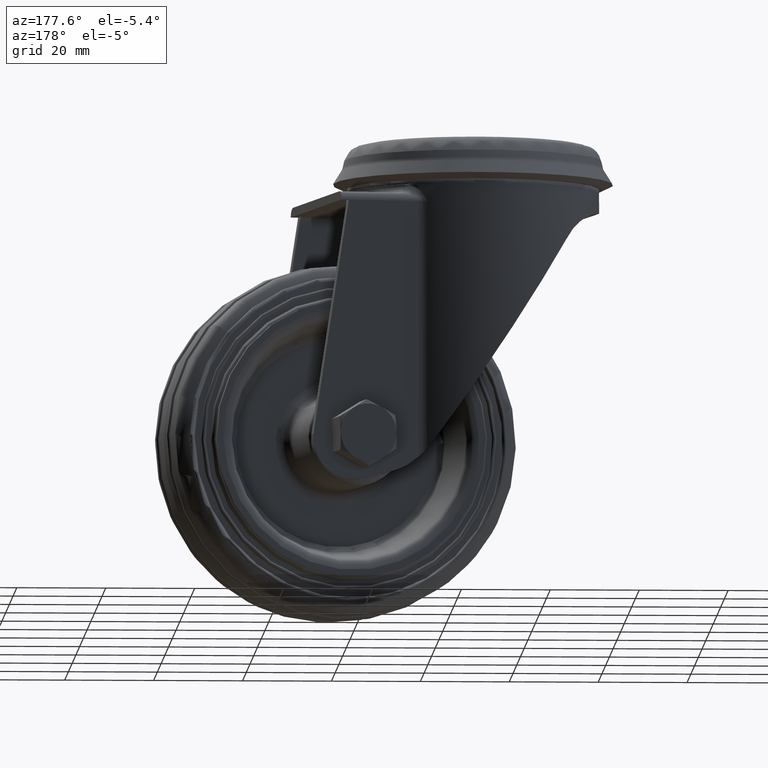
[diagram: clean part render]
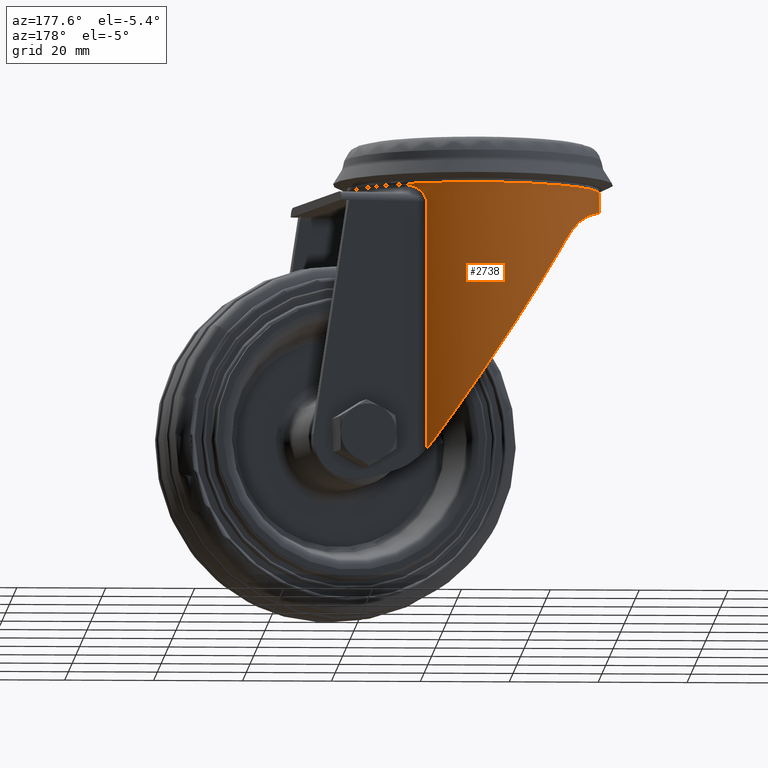
[diagram: same view with one face highlighted and labeled with its STEP entity id]
A machine part, auxiliary view. The second image highlights one B-rep face of the part: STEP entity #2738.
In plain terms, the highlighted cylindrical surface (bore or boss wall) has radius 28.5 mm, axis along (0, 0, -1).
Its self-contained STEP definition (entity closure, byte-faithful):
#35=ELLIPSE('',#3081,29.7654583162742,28.4999994641854);
#36=ELLIPSE('',#3082,51.2797766722154,28.499999464199);
#37=ELLIPSE('',#3084,51.2797766722153,28.4999994641988);
#69=B_SPLINE_CURVE_WITH_KNOTS('',3,(#10094,#10095,#10096,#10097,#10098,
#10099,#10100,#10101,#10102,#10103),.UNSPECIFIED.,.F.,.F.,(4,2,2,2,4),(9.25357478726507,
9.53642473426492,10.1901647480214,10.4833253208893,10.6103905339995),
 .UNSPECIFIED.);
#70=B_SPLINE_CURVE_WITH_KNOTS('',3,(#10107,#10108,#10109,#10110,#10111,
#10112),.UNSPECIFIED.,.F.,.F.,(4,2,4),(10.376885936131,10.3872155247914,
10.6460429120339),.UNSPECIFIED.);
#71=B_SPLINE_CURVE_WITH_KNOTS('',3,(#10116,#10117,#10118,#10119,#10120,
#10121,#10122,#10123,#10124,#10125,#10126,#10127,#10128,#10129),
 .UNSPECIFIED.,.F.,.F.,(4,2,1,1,1,1,2,2,4),(0.,0.249999999999972,0.374999999999959,
0.437499999999953,0.468749999999951,0.484374999999949,0.492187499999947,
0.499999999999944,1.),.UNSPECIFIED.);
#72=B_SPLINE_CURVE_WITH_KNOTS('',3,(#10131,#10132,#10133,#10134,#10135,
#10136,#10137,#10138,#10139,#10140,#10141,#10142,#10143,#10144,#10145,#10146,
#10147,#10148,#10149,#10150,#10151,#10152,#10153,#10154,#10155,#10156,#10157,
#10158,#10159,#10160,#10161,#10162,#10163,#10164,#10165,#10166,#10167,#10168,
#10169,#10170,#10171,#10172,#10173,#10174,#10175,#10176,#10177,#10178,#10179,
#10180,#10181,#10182,#10183,#10184,#10185,#10186,#10187,#10188,#10189,#10190,
#10191,#10192,#10193,#10194,#10195,#10196,#10197,#10198,#10199,#10200,#10201,
#10202,#10203,#10204,#10205,#10206,#10207,#10208,#10209,#10210,#10211,#10212,
#10213,#10214,#10215),.UNSPECIFIED.,.F.,.F.,(4,3,3,3,3,3,3,3,3,3,3,3,3,
3,3,3,3,3,3,3,3,3,3,3,3,3,3,3,4),(0.,0.031250000000003,0.0468750000000046,
0.0625000000000061,0.0937500000000088,0.10937500000001,0.125000000000012,
0.129471436937932,0.187500000000015,0.234375000000016,0.242187500000016,
0.250000000000017,0.257488735938616,0.375000000000009,0.437500000000007,
0.468750000000006,0.484375000000006,0.500000000000007,0.50621749315802,
0.625000000000004,0.630935828976621,0.750000000000002,0.753807705779574,
0.875,0.90625,0.921875,0.9375,0.96875,1.),.UNSPECIFIED.);
#73=B_SPLINE_CURVE_WITH_KNOTS('',3,(#10219,#10220,#10221,#10222,#10223,
#10224,#10225,#10226,#10227,#10228,#10229,#10230,#10231,#10232,#10233,#10234,
#10235,#10236,#10237,#10238,#10239,#10240,#10241,#10242,#10243,#10244,#10245,
#10246,#10247,#10248,#10249,#10250,#10251,#10252,#10253,#10254,#10255,#10256,
#10257,#10258,#10259,#10260,#10261,#10262,#10263,#10264,#10265,#10266,#10267,
#10268,#10269,#10270,#10271,#10272,#10273,#10274,#10275,#10276,#10277,#10278,
#10279,#10280,#10281,#10282,#10283,#10284,#10285,#10286,#10287,#10288,#10289,
#10290,#10291,#10292,#10293,#10294,#10295,#10296,#10297,#10298,#10299,#10300,
#10301,#10302,#10303,#10304,#10305,#10306,#10307,#10308,#10309),
 .UNSPECIFIED.,.F.,.F.,(4,3,3,3,3,3,3,3,3,3,3,3,3,3,3,3,3,3,3,3,3,3,3,3,
3,3,3,3,3,3,4),(0.,0.0625000000000026,0.0937500000000033,0.125000000000004,
0.246645994369639,0.250000000000004,0.369558708249183,0.375000000000005,
0.468750000000005,0.484375000000005,0.494503939300755,0.500000000000006,
0.625000000000004,0.687500000000003,0.718750000000003,0.742187500000002,
0.74408564392723,0.750000000000001,0.812500000000003,0.843750000000004,
0.859375000000004,0.871351232760853,0.875000000000004,0.906250000000005,
0.921875000000005,0.929687500000005,0.937500000000005,0.968750000000002,
0.976562500000002,0.988281250000001,1.),.UNSPECIFIED.);
#74=B_SPLINE_CURVE_WITH_KNOTS('',3,(#10311,#10312,#10313,#10314,#10315,
#10316,#10317,#10318,#10319,#10320,#10321,#10322,#10323,#10324,#10325,#10326,
#10327,#10328,#10329,#10330,#10331,#10332,#10333,#10334,#10335,#10336,#10337,
#10338,#10339,#10340,#10341),.UNSPECIFIED.,.F.,.F.,(4,3,3,3,3,3,3,3,3,3,
4),(0.,0.250000000000048,0.37500000000007,0.437500000000082,0.468750000000088,
0.48437500000009,0.492187500000091,0.496093750000092,0.498046875000092,
0.500000000000092,1.),.UNSPECIFIED.);
#75=B_SPLINE_CURVE_WITH_KNOTS('',3,(#10345,#10346,#10347,#10348,#10349,
#10350),.UNSPECIFIED.,.F.,.F.,(4,2,4),(-14.4677659499424,-14.2550973941214,
-14.2011907922855),.UNSPECIFIED.);
#76=B_SPLINE_CURVE_WITH_KNOTS('',3,(#10353,#10354,#10355,#10356,#10357,
#10358,#10359,#10360,#10361,#10362,#10363,#10364),.UNSPECIFIED.,.F.,.F.,
(4,2,2,2,2,4),(-6.57594902076478,-6.34857653447168,-6.01950871435462,-5.66539860963671,
-5.31128850491881,-5.28320441834529),.UNSPECIFIED.);
#247=LINE('',#10114,#313);
#248=LINE('',#10343,#314);
#313=VECTOR('',#3773,55.8306637930106);
#314=VECTOR('',#3776,55.830663515112);
#554=FACE_BOUND('',#975,.T.);
#709=FACE_OUTER_BOUND('',#974,.T.);
#974=EDGE_LOOP('',(#2326));
#975=EDGE_LOOP('',(#2327,#2328,#2329,#2330,#2331,#2332,#2333,#2334,#2335,
#2336,#2337,#2338,#2339,#2340));
#1190=CIRCLE('',#3080,28.4999994642);
#1191=CIRCLE('',#3083,28.4999994642);
#1397=VERTEX_POINT('',#10088);
#1398=VERTEX_POINT('',#10090);
#1399=VERTEX_POINT('',#10091);
#1400=VERTEX_POINT('',#10093);
#1401=VERTEX_POINT('',#10104);
#1402=VERTEX_POINT('',#10106);
#1403=VERTEX_POINT('',#10113);
#1404=VERTEX_POINT('',#10115);
#1405=VERTEX_POINT('',#10130);
#1406=VERTEX_POINT('',#10216);
#1407=VERTEX_POINT('',#10218);
#1408=VERTEX_POINT('',#10310);
#1409=VERTEX_POINT('',#10342);
#1410=VERTEX_POINT('',#10344);
#1411=VERTEX_POINT('',#10351);
#1719=EDGE_CURVE('',#1397,#1397,#1190,.T.);
#1720=EDGE_CURVE('',#1398,#1399,#35,.T.);
#1721=EDGE_CURVE('',#1398,#1400,#69,.T.);
#1722=EDGE_CURVE('',#1401,#1400,#36,.T.);
#1723=EDGE_CURVE('',#1402,#1401,#70,.T.);
#1724=EDGE_CURVE('',#1402,#1403,#247,.T.);
#1725=EDGE_CURVE('',#1403,#1404,#71,.T.);
#1726=EDGE_CURVE('',#1404,#1405,#72,.T.);
#1727=EDGE_CURVE('',#1405,#1406,#1191,.T.);
#1728=EDGE_CURVE('',#1406,#1407,#73,.T.);
#1729=EDGE_CURVE('',#1408,#1407,#74,.T.);
#1730=EDGE_CURVE('',#1408,#1409,#248,.T.);
#1731=EDGE_CURVE('',#1410,#1409,#75,.T.);
#1732=EDGE_CURVE('',#1411,#1410,#37,.T.);
#1733=EDGE_CURVE('',#1411,#1399,#76,.T.);
#2326=ORIENTED_EDGE('',*,*,#1719,.T.);
#2327=ORIENTED_EDGE('',*,*,#1720,.F.);
#2328=ORIENTED_EDGE('',*,*,#1721,.T.);
#2329=ORIENTED_EDGE('',*,*,#1722,.F.);
#2330=ORIENTED_EDGE('',*,*,#1723,.F.);
#2331=ORIENTED_EDGE('',*,*,#1724,.T.);
#2332=ORIENTED_EDGE('',*,*,#1725,.T.);
#2333=ORIENTED_EDGE('',*,*,#1726,.T.);
#2334=ORIENTED_EDGE('',*,*,#1727,.T.);
#2335=ORIENTED_EDGE('',*,*,#1728,.T.);
#2336=ORIENTED_EDGE('',*,*,#1729,.F.);
#2337=ORIENTED_EDGE('',*,*,#1730,.T.);
#2338=ORIENTED_EDGE('',*,*,#1731,.F.);
#2339=ORIENTED_EDGE('',*,*,#1732,.F.);
#2340=ORIENTED_EDGE('',*,*,#1733,.T.);
#2574=CYLINDRICAL_SURFACE('',#3079,28.4999994642);
#2738=ADVANCED_FACE('',(#709,#554),#2574,.T.);
#3079=AXIS2_PLACEMENT_3D('',#10087,#3765,#3766);
#3080=AXIS2_PLACEMENT_3D('',#10089,#3767,#3768);
#3081=AXIS2_PLACEMENT_3D('',#10092,#3769,#3770);
#3082=AXIS2_PLACEMENT_3D('',#10105,#3771,#3772);
#3083=AXIS2_PLACEMENT_3D('',#10217,#3774,#3775);
#3084=AXIS2_PLACEMENT_3D('',#10352,#3777,#3778);
#3765=DIRECTION('center_axis',(0.,0.,-1.));
#3766=DIRECTION('ref_axis',(-1.,0.,0.));
#3767=DIRECTION('center_axis',(0.,0.,-1.));
#3768=DIRECTION('ref_axis',(-1.,0.,0.));
#3769=DIRECTION('center_axis',(-0.288480871590981,4.81147429780588E-16,
-0.957485658757408));
#3770=DIRECTION('ref_axis',(0.957485658757408,3.07684756161141E-12,-0.288480871590981));
#3771=DIRECTION('center_axis',(-0.831332994990098,-3.95071529059072E-15,
-0.555774640875952));
#3772=DIRECTION('ref_axis',(0.555774640875952,1.81758595315788E-15,-0.831332994990098));
#3773=DIRECTION('',(0.,0.,1.));
#3774=DIRECTION('center_axis',(0.,0.,1.));
#3775=DIRECTION('ref_axis',(-1.,0.,0.));
#3776=DIRECTION('',(0.,0.,-1.));
#3777=DIRECTION('center_axis',(-0.831332994990098,2.4691970566192E-15,-0.555774640875952));
#3778=DIRECTION('ref_axis',(0.555774640875952,-1.617546547693E-15,-0.831332994990098));
#10087=CARTESIAN_POINT('Origin',(0.,2.577197E-15,-7.68446676099953));
#10088=CARTESIAN_POINT('',(7.22513358680707E-15,28.4999994642,-10.685999953));
#10089=CARTESIAN_POINT('Origin',(0.,2.577197E-15,-10.685999953));
#10090=CARTESIAN_POINT('',(-23.6189054400678,-15.9498362145989,-16.2924136985072));
#10091=CARTESIAN_POINT('',(-23.6189054400678,15.949836214599,-16.2924136985072));
#10092=CARTESIAN_POINT('Origin',(-2.60103050209182E-11,7.84504878380179E-12,
-23.408554149332));
#10093=CARTESIAN_POINT('',(-15.4753899645008,-23.9324523379036,-22.656774489365));
#10094=CARTESIAN_POINT('Ctrl Pts',(-23.6189054400678,-15.9498362145989,
-16.2924136985072));
#10095=CARTESIAN_POINT('Ctrl Pts',(-23.1054574599073,-16.7101624730407,
-16.4471104498148));
#10096=CARTESIAN_POINT('Ctrl Pts',(-22.5626285312687,-17.4344917094634,
-16.6421538456261));
#10097=CARTESIAN_POINT('Ctrl Pts',(-20.6990805123598,-19.6973270415957,
-17.4602977472592));
#10098=CARTESIAN_POINT('Ctrl Pts',(-19.286452936242,-21.0561258515197,-18.3037370641524));
#10099=CARTESIAN_POINT('Ctrl Pts',(-17.3107250138606,-22.6540876073496,
-20.1760270680311));
#10100=CARTESIAN_POINT('Ctrl Pts',(-16.706135051909,-23.0997902858292,-20.8540208040358));
#10101=CARTESIAN_POINT('Ctrl Pts',(-15.9181532272458,-23.6420392692724,
-21.9489400601314));
#10102=CARTESIAN_POINT('Ctrl Pts',(-15.6900628319067,-23.7936388853163,
-22.2959418404442));
#10103=CARTESIAN_POINT('Ctrl Pts',(-15.4753899645008,-23.9324523379036,
-22.656774489365));
#10104=CARTESIAN_POINT('',(15.253446233664,-24.0745165570592,-68.6212600026259));
#10105=CARTESIAN_POINT('Origin',(-3.10862446895044E-14,-9.14823772291129E-13,
-45.8050100179805));
#10106=CARTESIAN_POINT('',(16.7319805372379,-23.0714281474054,-70.7166637930106));
#10107=CARTESIAN_POINT('Ctrl Pts',(16.7319805372379,-23.0714281474054,-70.7166637930106));
#10108=CARTESIAN_POINT('Ctrl Pts',(16.7119429388512,-23.0859599182207,-70.6924977010292));
#10109=CARTESIAN_POINT('Ctrl Pts',(16.6919984072706,-23.1003843609447,-70.6683034795935));
#10110=CARTESIAN_POINT('Ctrl Pts',(16.1747767849612,-23.4734454530621,-70.0372274406467));
#10111=CARTESIAN_POINT('Ctrl Pts',(15.6920871723593,-23.796596709389,-69.3585491335119));
#10112=CARTESIAN_POINT('Ctrl Pts',(15.253446233664,-24.0745165570592,-68.6212600026259));
#10113=CARTESIAN_POINT('',(16.7319805372379,-23.0714281474054,-14.886));
#10114=CARTESIAN_POINT('',(16.7319805372379,-23.0714281474054,-12.886));
#10115=CARTESIAN_POINT('',(17.2805700726862,-22.663447827336,-13.5045179988962));
#10116=CARTESIAN_POINT('Ctrl Pts',(16.7319805372379,-23.0714281474054,-14.886));
#10117=CARTESIAN_POINT('Ctrl Pts',(16.7898068235336,-23.029491068753,-14.7306555001852));
#10118=CARTESIAN_POINT('Ctrl Pts',(16.8406358643156,-22.9923014642523,-14.59481221841));
#10119=CARTESIAN_POINT('Ctrl Pts',(16.9065305799139,-22.9438431083236,-14.4202991228065));
#10120=CARTESIAN_POINT('Ctrl Pts',(16.9368901473388,-22.9214445569455,-14.3403555317696));
#10121=CARTESIAN_POINT('Ctrl Pts',(16.9678069311455,-22.8985520476516,-14.2598856832317));
#10122=CARTESIAN_POINT('Ctrl Pts',(16.9821424097939,-22.8879193345601,-14.2228501775473));
#10123=CARTESIAN_POINT('Ctrl Pts',(16.9890297527461,-22.8828068144546,-14.2051322793513));
#10124=CARTESIAN_POINT('Ctrl Pts',(16.9919214203894,-22.8806594599979,-14.1977102918343));
#10125=CARTESIAN_POINT('Ctrl Pts',(16.9938358579192,-22.8792376121928,-14.1928003884728));
#10126=CARTESIAN_POINT('Ctrl Pts',(16.9943398365992,-22.8788633017009,-14.1915079506036));
#10127=CARTESIAN_POINT('Ctrl Pts',(17.0847190441176,-22.8117214175726,-13.960086304461));
#10128=CARTESIAN_POINT('Ctrl Pts',(17.1797281218777,-22.7403384403834,-13.7322764315644));
#10129=CARTESIAN_POINT('Ctrl Pts',(17.2805700726862,-22.663447827336,-13.5045179988962));
#10130=CARTESIAN_POINT('',(21.1023150030414,-19.1557372860407,-10.886));
#10131=CARTESIAN_POINT('Ctrl Pts',(17.2805700726862,-22.663447827336,-13.5045179988962));
#10132=CARTESIAN_POINT('Ctrl Pts',(17.3057585746947,-22.6442419378659,-13.4496787929313));
#10133=CARTESIAN_POINT('Ctrl Pts',(17.3319024067064,-22.6242406980963,-13.3957200718597));
#10134=CARTESIAN_POINT('Ctrl Pts',(17.3589937788022,-22.6034343406796,-13.3426418355893));
#10135=CARTESIAN_POINT('Ctrl Pts',(17.3725394648501,-22.5930311619712,-13.3161027174541));
#10136=CARTESIAN_POINT('Ctrl Pts',(17.3863220309615,-22.5824266970568,-13.2897837204962));
#10137=CARTESIAN_POINT('Ctrl Pts',(17.4003404553029,-22.5716196609504,-13.2636848446846));
#10138=CARTESIAN_POINT('Ctrl Pts',(17.4143588796444,-22.560812624844,-13.237585968873));
#10139=CARTESIAN_POINT('Ctrl Pts',(17.4286131630037,-22.5498030184837,-13.211707214208));
#10140=CARTESIAN_POINT('Ctrl Pts',(17.4431022347917,-22.5385894935419,-13.1860485807052));
#10141=CARTESIAN_POINT('Ctrl Pts',(17.4720803783676,-22.5161624436583,-13.1347313136997));
#10142=CARTESIAN_POINT('Ctrl Pts',(17.5019977439256,-22.4929198083965,-13.0842945312999));
#10143=CARTESIAN_POINT('Ctrl Pts',(17.5328448855303,-22.4688499619089,-13.034738233689));
#10144=CARTESIAN_POINT('Ctrl Pts',(17.5482684563326,-22.4568150386651,-13.0099600848835));
#10145=CARTESIAN_POINT('Ctrl Pts',(17.5639244546429,-22.4445732912204,-12.9854020572847));
#10146=CARTESIAN_POINT('Ctrl Pts',(17.579811586428,-22.4321231362515,-12.9610641509009));
#10147=CARTESIAN_POINT('Ctrl Pts',(17.5956987182131,-22.4196729812826,-12.9367262445171));
#10148=CARTESIAN_POINT('Ctrl Pts',(17.6124171705031,-22.4065419730138,-12.9117310819455));
#10149=CARTESIAN_POINT('Ctrl Pts',(17.628166941343,-22.3941442532555,-12.8887130939147));
#10150=CARTESIAN_POINT('Ctrl Pts',(17.6326740841973,-22.3905963734428,-12.882125991072));
#10151=CARTESIAN_POINT('Ctrl Pts',(17.6371995023564,-22.3870318857229,-12.875550742932));
#10152=CARTESIAN_POINT('Ctrl Pts',(17.6417432138994,-22.3834507134693,-12.868986987892));
#10153=CARTESIAN_POINT('Ctrl Pts',(17.7007097285731,-22.3369756579467,-12.7838051372816));
#10154=CARTESIAN_POINT('Ctrl Pts',(17.7630607199864,-22.287443947335,-12.7003234771886));
#10155=CARTESIAN_POINT('Ctrl Pts',(17.8285924756639,-22.2348965577146,-12.6186058697466));
#10156=CARTESIAN_POINT('Ctrl Pts',(17.8815284934677,-22.1924492049201,-12.5525950528883));
#10157=CARTESIAN_POINT('Ctrl Pts',(17.9365636712493,-22.148015278558,-12.4877062166505));
#10158=CARTESIAN_POINT('Ctrl Pts',(17.9936764248364,-22.1015234010365,-12.4239729455186));
#10159=CARTESIAN_POINT('Ctrl Pts',(18.003195217101,-22.0937747547829,-12.4133507336633));
#10160=CARTESIAN_POINT('Ctrl Pts',(18.0127722992761,-22.0859684059554,-12.4027616487043));
#10161=CARTESIAN_POINT('Ctrl Pts',(18.0224068828192,-22.0781045001083,-12.3922048764925));
#10162=CARTESIAN_POINT('Ctrl Pts',(18.0320414663623,-22.0702405942612,-12.3816481042808));
#10163=CARTESIAN_POINT('Ctrl Pts',(18.042426076845,-22.0617523346922,-12.3703773450517));
#10164=CARTESIAN_POINT('Ctrl Pts',(18.0514827646262,-22.054339894873,-12.3606313308122));
#10165=CARTESIAN_POINT('Ctrl Pts',(18.0601641269649,-22.0472346399012,-12.3512892089442));
#10166=CARTESIAN_POINT('Ctrl Pts',(18.06887772065,-22.0400942674935,-12.3419879602559));
#10167=CARTESIAN_POINT('Ctrl Pts',(18.0776220326044,-22.0329197137657,-12.332728807495));
#10168=CARTESIAN_POINT('Ctrl Pts',(18.2148354634861,-21.9203385138752,-12.1874366308185));
#10169=CARTESIAN_POINT('Ctrl Pts',(18.3598489051441,-21.7992040084974,-12.0513162565409));
#10170=CARTESIAN_POINT('Ctrl Pts',(18.5122350909372,-21.6690153200946,-11.9247618270702));
#10171=CARTESIAN_POINT('Ctrl Pts',(18.5932838030597,-21.5997726556559,-11.8574520937856));
#10172=CARTESIAN_POINT('Ctrl Pts',(18.6764140263267,-21.5279697227911,-11.7928098325708));
#10173=CARTESIAN_POINT('Ctrl Pts',(18.7615458952918,-21.4535252564445,-11.7308350437388));
#10174=CARTESIAN_POINT('Ctrl Pts',(18.8041118297744,-21.4163030232711,-11.6998476493228));
#10175=CARTESIAN_POINT('Ctrl Pts',(18.8471780621257,-21.378420276567,-11.6695271230495));
#10176=CARTESIAN_POINT('Ctrl Pts',(18.8907336452121,-21.3398662298806,-11.6398734650219));
#10177=CARTESIAN_POINT('Ctrl Pts',(18.9125114367553,-21.3205892065374,-11.6250466360082));
#10178=CARTESIAN_POINT('Ctrl Pts',(18.9344115578554,-21.3011443492154,-11.6103865240563));
#10179=CARTESIAN_POINT('Ctrl Pts',(18.9564325805633,-21.2815302618379,-11.5958931291743));
#10180=CARTESIAN_POINT('Ctrl Pts',(18.9784536032713,-21.2619161744603,-11.5813997342922));
#10181=CARTESIAN_POINT('Ctrl Pts',(19.001686703758,-21.2411547809608,-11.5663789841797));
#10182=CARTESIAN_POINT('Ctrl Pts',(19.0228568853354,-21.2221788792469,-11.552913095739));
#10183=CARTESIAN_POINT('Ctrl Pts',(19.0312809147185,-21.2146279967462,-11.5475547553072));
#10184=CARTESIAN_POINT('Ctrl Pts',(19.0397088826904,-21.207064474867,-11.5422282777039));
#10185=CARTESIAN_POINT('Ctrl Pts',(19.0481409375895,-21.1994881140737,-11.5369331362564));
#10186=CARTESIAN_POINT('Ctrl Pts',(19.2092316848225,-21.0547450311455,-11.4357717583126));
#10187=CARTESIAN_POINT('Ctrl Pts',(19.3727408962987,-20.9045042907829,-11.3460266127989));
#10188=CARTESIAN_POINT('Ctrl Pts',(19.5380701489736,-20.7488258308985,-11.267524263492));
#10189=CARTESIAN_POINT('Ctrl Pts',(19.5463320235105,-20.7410462281793,-11.2636013245666));
#10190=CARTESIAN_POINT('Ctrl Pts',(19.5546038516704,-20.7332478722987,-11.259704195563));
#10191=CARTESIAN_POINT('Ctrl Pts',(19.5628847848304,-20.7254314395393,-11.255833410175));
#10192=CARTESIAN_POINT('Ctrl Pts',(19.7289883646126,-20.5686450680769,-11.1781910361707));
#10193=CARTESIAN_POINT('Ctrl Pts',(19.8976563084017,-20.4056004857316,-11.1117347779043));
#10194=CARTESIAN_POINT('Ctrl Pts',(20.0646437318467,-20.2400603110125,-11.0580278762738));
#10195=CARTESIAN_POINT('Ctrl Pts',(20.0699840367588,-20.234766289523,-11.0563103144079));
#10196=CARTESIAN_POINT('Ctrl Pts',(20.0753221275945,-20.229470272308,-11.0546057782852));
#10197=CARTESIAN_POINT('Ctrl Pts',(20.0806580766974,-20.2241721879734,-11.0529142081746));
#10198=CARTESIAN_POINT('Ctrl Pts',(20.2504915541392,-20.0555438766864,-10.9990746327437));
#10199=CARTESIAN_POINT('Ctrl Pts',(20.4181565431856,-19.8848707009042,-10.9580257905092));
#10200=CARTESIAN_POINT('Ctrl Pts',(20.5860545508985,-19.709505889872,-10.9299450299337));
#10201=CARTESIAN_POINT('Ctrl Pts',(20.629347837611,-19.664287252994,-10.922704274458));
#10202=CARTESIAN_POINT('Ctrl Pts',(20.6726020570398,-19.6188108265744,-10.9163373726022));
#10203=CARTESIAN_POINT('Ctrl Pts',(20.7158134212211,-19.5730760784116,-10.9108377539019));
#10204=CARTESIAN_POINT('Ctrl Pts',(20.7374191033118,-19.5502087043302,-10.9080879445517));
#10205=CARTESIAN_POINT('Ctrl Pts',(20.7590141282489,-19.5272766938953,-10.9055549049247));
#10206=CARTESIAN_POINT('Ctrl Pts',(20.7805986623432,-19.5042793076265,-10.9032547360896));
#10207=CARTESIAN_POINT('Ctrl Pts',(20.8021831964375,-19.4812819213577,-10.9009545672544));
#10208=CARTESIAN_POINT('Ctrl Pts',(20.8180037299748,-19.4643682934404,-10.8994427427771));
#10209=CARTESIAN_POINT('Ctrl Pts',(20.8366787980641,-19.4443555810676,-10.8978795619537));
#10210=CARTESIAN_POINT('Ctrl Pts',(20.8740289342425,-19.4043301563221,-10.8947532003068));
#10211=CARTESIAN_POINT('Ctrl Pts',(20.9148919294695,-19.3603112283392,-10.8922075921257));
#10212=CARTESIAN_POINT('Ctrl Pts',(20.9591919216065,-19.312232453589,-10.8902298432449));
#10213=CARTESIAN_POINT('Ctrl Pts',(21.0034919137435,-19.2641536788388,-10.888252094364));
#10214=CARTESIAN_POINT('Ctrl Pts',(21.0512288054883,-19.2120147875002,-10.8868421453637));
#10215=CARTESIAN_POINT('Ctrl Pts',(21.1023150030414,-19.1557372860408,-10.886));
#10216=CARTESIAN_POINT('',(21.1023150030414,19.1557372860408,-10.886));
#10217=CARTESIAN_POINT('Origin',(0.,2.577197E-15,-10.886));
#10218=CARTESIAN_POINT('',(17.2805700726861,22.663447827336,-13.5045179988964));
#10219=CARTESIAN_POINT('Ctrl Pts',(21.1023150030414,19.1557372860408,-10.886));
#10220=CARTESIAN_POINT('Ctrl Pts',(21.0138401810157,19.2532027887434,-10.8867500941184));
#10221=CARTESIAN_POINT('Ctrl Pts',(20.9265668055155,19.3479808693361,-10.8907953691491));
#10222=CARTESIAN_POINT('Ctrl Pts',(20.8405913186943,19.4401440977631,-10.8981358210885));
#10223=CARTESIAN_POINT('Ctrl Pts',(20.7976035752837,19.4862257119765,-10.9018060470582));
#10224=CARTESIAN_POINT('Ctrl Pts',(20.7549402059542,19.5316535302422,-10.9063000671292));
#10225=CARTESIAN_POINT('Ctrl Pts',(20.7126123604585,19.5764362992961,-10.9116178816528));
#10226=CARTESIAN_POINT('Ctrl Pts',(20.6702845149627,19.6212190683499,-10.9169356961765));
#10227=CARTESIAN_POINT('Ctrl Pts',(20.6298199267759,19.6637610006851,-10.9228217913877));
#10228=CARTESIAN_POINT('Ctrl Pts',(20.5866460960179,19.7088577942193,-10.9300427096126));
#10229=CARTESIAN_POINT('Ctrl Pts',(20.4185845416722,19.8844048115743,-10.9581513745));
#10230=CARTESIAN_POINT('Ctrl Pts',(20.2493066336857,20.0567730060273,-10.9993025949608));
#10231=CARTESIAN_POINT('Ctrl Pts',(20.0775093923646,20.2272980415143,-11.0539062655209));
#10232=CARTESIAN_POINT('Ctrl Pts',(20.0727726238613,20.2319997329436,-11.0554117899687));
#10233=CARTESIAN_POINT('Ctrl Pts',(20.0680337635324,20.2367001977532,-11.0569277529948));
#10234=CARTESIAN_POINT('Ctrl Pts',(20.0632927759822,20.2413994691032,-11.0584542020606));
#10235=CARTESIAN_POINT('Ctrl Pts',(19.8942929561262,20.4089122506068,-11.1128668353768));
#10236=CARTESIAN_POINT('Ctrl Pts',(19.7266325848969,20.570904048484,-11.1791759900624));
#10237=CARTESIAN_POINT('Ctrl Pts',(19.5605356173925,20.7276485839595,-11.2569322202012));
#10238=CARTESIAN_POINT('Ctrl Pts',(19.5529763013681,20.7347822571178,-11.2604710200077));
#10239=CARTESIAN_POINT('Ctrl Pts',(19.5454199450707,20.7419052073968,-11.2640340023443));
#10240=CARTESIAN_POINT('Ctrl Pts',(19.5378669037492,20.7490171722955,-11.2676209694124));
#10241=CARTESIAN_POINT('Ctrl Pts',(19.4077328002474,20.8715518092496,-11.3294221331873));
#10242=CARTESIAN_POINT('Ctrl Pts',(19.2785552751187,20.9908702898177,-11.398294359366));
#10243=CARTESIAN_POINT('Ctrl Pts',(19.1505098619981,21.1070545354777,-11.4743825816255));
#10244=CARTESIAN_POINT('Ctrl Pts',(19.1291689598113,21.126418576421,-11.487063952002));
#10245=CARTESIAN_POINT('Ctrl Pts',(19.1078597783298,21.1456948128399,-11.4999473268631));
#10246=CARTESIAN_POINT('Ctrl Pts',(19.0865849563606,21.1648814150298,-11.5130394072784));
#10247=CARTESIAN_POINT('Ctrl Pts',(19.0727935080175,21.1773191704839,-11.5215263761007));
#10248=CARTESIAN_POINT('Ctrl Pts',(19.0594543859129,21.1893253571748,-11.5298217347068));
#10249=CARTESIAN_POINT('Ctrl Pts',(19.0457151933734,21.2016674405367,-11.5384596815976));
#10250=CARTESIAN_POINT('Ctrl Pts',(19.0382601742531,21.2083643746676,-11.543146715355));
#10251=CARTESIAN_POINT('Ctrl Pts',(19.0306854287423,21.2151617855638,-11.5479350541077));
#10252=CARTESIAN_POINT('Ctrl Pts',(19.022855723394,21.2221799505408,-11.5529152965865));
#10253=CARTESIAN_POINT('Ctrl Pts',(18.844780330474,21.3817980243078,-11.6661837526544));
#10254=CARTESIAN_POINT('Ctrl Pts',(18.674353117772,21.5305110546606,-11.7901218796641));
#10255=CARTESIAN_POINT('Ctrl Pts',(18.5122569363,21.6689954984223,-11.9247397217732));
#10256=CARTESIAN_POINT('Ctrl Pts',(18.431208845564,21.7382377203032,-11.9920486428277));
#10257=CARTESIAN_POINT('Ctrl Pts',(18.352240454671,21.8049212475965,-12.0620270222267));
#10258=CARTESIAN_POINT('Ctrl Pts',(18.2754298329299,21.8691152244991,-12.1346864552479));
#10259=CARTESIAN_POINT('Ctrl Pts',(18.2370245220593,21.9012122129504,-12.1710161717585));
#10260=CARTESIAN_POINT('Ctrl Pts',(18.1991587758346,21.9326865379991,-12.2080161093938));
#10261=CARTESIAN_POINT('Ctrl Pts',(18.1618340688043,21.9635525374439,-12.2456743749475));
#10262=CARTESIAN_POINT('Ctrl Pts',(18.1338405385316,21.9867020370276,-12.2739180741127));
#10263=CARTESIAN_POINT('Ctrl Pts',(18.1061512884551,22.0095093766298,-12.3025320983876));
#10264=CARTESIAN_POINT('Ctrl Pts',(18.0787673616044,22.031979924975,-12.3315136358271));
#10265=CARTESIAN_POINT('Ctrl Pts',(18.0765496065343,22.03379975793,-12.3338607773435));
#10266=CARTESIAN_POINT('Ctrl Pts',(18.074374687952,22.0355838796619,-12.336167071614));
#10267=CARTESIAN_POINT('Ctrl Pts',(18.0722125575512,22.0373569815967,-12.3384641361313));
#10268=CARTESIAN_POINT('Ctrl Pts',(18.0654756558427,22.0428817239753,-12.3456214740354));
#10269=CARTESIAN_POINT('Ctrl Pts',(18.0588674499811,22.0482961880955,-12.3526823114295));
#10270=CARTESIAN_POINT('Ctrl Pts',(18.0514890401484,22.0543353263032,-12.3606239413906));
#10271=CARTESIAN_POINT('Ctrl Pts',(17.9735176415935,22.1181539624046,-12.4445471726706));
#10272=CARTESIAN_POINT('Ctrl Pts',(17.8991882503567,22.1783000341932,-12.5305159746256));
#10273=CARTESIAN_POINT('Ctrl Pts',(17.8286048131535,22.2348965601673,-12.6185281418733));
#10274=CARTESIAN_POINT('Ctrl Pts',(17.7933130945519,22.2631948231544,-12.6625342254972));
#10275=CARTESIAN_POINT('Ctrl Pts',(17.7589575187539,22.2906052854672,-12.7070511694228));
#10276=CARTESIAN_POINT('Ctrl Pts',(17.7255491700314,22.3171411925791,-12.7520789736642));
#10277=CARTESIAN_POINT('Ctrl Pts',(17.7088449956701,22.3304091461351,-12.774592875785));
#10278=CARTESIAN_POINT('Ctrl Pts',(17.6923776110441,22.3434584400806,-12.7972344951417));
#10279=CARTESIAN_POINT('Ctrl Pts',(17.6761484505867,22.3562904994864,-12.8200040060543));
#10280=CARTESIAN_POINT('Ctrl Pts',(17.663709141585,22.3661260022221,-12.8374563556569));
#10281=CARTESIAN_POINT('Ctrl Pts',(17.6519523802943,22.375405979417,-12.854204006463));
#10282=CARTESIAN_POINT('Ctrl Pts',(17.6396301760524,22.385115963827,-12.8720377687424));
#10283=CARTESIAN_POINT('Ctrl Pts',(17.6358760025949,22.38807427916,-12.8774711340465));
#10284=CARTESIAN_POINT('Ctrl Pts',(17.6320694263545,22.3910723490322,-12.8830062795732));
#10285=CARTESIAN_POINT('Ctrl Pts',(17.6281767275138,22.3941365618522,-12.88869601087));
#10286=CARTESIAN_POINT('Ctrl Pts',(17.5948375664223,22.4203801242258,-12.9374259219256));
#10287=CARTESIAN_POINT('Ctrl Pts',(17.5627014632778,22.4455552216431,-12.9865333761562));
#10288=CARTESIAN_POINT('Ctrl Pts',(17.5317813403254,22.4696795159356,-13.0360172479481));
#10289=CARTESIAN_POINT('Ctrl Pts',(17.5163212788493,22.4817416630819,-13.0607591838441));
#10290=CARTESIAN_POINT('Ctrl Pts',(17.5011651828695,22.4935410741634,-13.0855952309731));
#10291=CARTESIAN_POINT('Ctrl Pts',(17.486314603678,22.5050796845497,-13.110525389328));
#10292=CARTESIAN_POINT('Ctrl Pts',(17.4788893140823,22.5108489897429,-13.1229904685054));
#10293=CARTESIAN_POINT('Ctrl Pts',(17.4715404021596,22.5165530928203,-13.1354790754893));
#10294=CARTESIAN_POINT('Ctrl Pts',(17.4642680527453,22.5221922247203,-13.1479912102791));
#10295=CARTESIAN_POINT('Ctrl Pts',(17.4569957033309,22.5278313566202,-13.1605033450689));
#10296=CARTESIAN_POINT('Ctrl Pts',(17.4491542869507,22.533905168542,-13.1741780064864));
#10297=CARTESIAN_POINT('Ctrl Pts',(17.442680871097,22.538914930854,-13.1855981980659));
#10298=CARTESIAN_POINT('Ctrl Pts',(17.416787207682,22.5589539801022,-13.2312789643837));
#10299=CARTESIAN_POINT('Ctrl Pts',(17.3903340710431,22.5793552939392,-13.2806959978928));
#10300=CARTESIAN_POINT('Ctrl Pts',(17.3633171693733,22.6001129335037,-13.3338492979606));
#10301=CARTESIAN_POINT('Ctrl Pts',(17.3565629439559,22.6053023433949,-13.3471376229775));
#10302=CARTESIAN_POINT('Ctrl Pts',(17.3497734780688,22.6105140169088,-13.3606594646622));
#10303=CARTESIAN_POINT('Ctrl Pts',(17.3429486952151,22.6157478487986,-13.3744148230251));
#10304=CARTESIAN_POINT('Ctrl Pts',(17.3327115209346,22.6235985966333,-13.3950478605696));
#10305=CARTESIAN_POINT('Ctrl Pts',(17.3223948818647,22.6314991987232,-13.4162063106437));
#10306=CARTESIAN_POINT('Ctrl Pts',(17.3119985235161,22.6394493041835,-13.4378901732863));
#10307=CARTESIAN_POINT('Ctrl Pts',(17.3016021651675,22.6473994096438,-13.4595740359289));
#10308=CARTESIAN_POINT('Ctrl Pts',(17.2911260834249,22.6553990130228,-13.4817833111423));
#10309=CARTESIAN_POINT('Ctrl Pts',(17.2805700726862,22.663447827336,-13.5045179988962));
#10310=CARTESIAN_POINT('',(16.7319805372379,23.0714281474054,-14.886));
#10311=CARTESIAN_POINT('Ctrl Pts',(16.7319805372379,23.0714281474054,-14.886));
#10312=CARTESIAN_POINT('Ctrl Pts',(16.7805318897602,23.0362174842306,-14.7555739954247));
#10313=CARTESIAN_POINT('Ctrl Pts',(16.8290216443499,23.0008082340039,-14.6251692111422));
#10314=CARTESIAN_POINT('Ctrl Pts',(16.8728858026403,22.9685848891401,-14.5087641839239));
#10315=CARTESIAN_POINT('Ctrl Pts',(16.8948178817856,22.9524732167082,-14.4505616703147));
#10316=CARTESIAN_POINT('Ctrl Pts',(16.9160081598075,22.9368574251337,-14.3947175877321));
#10317=CARTESIAN_POINT('Ctrl Pts',(16.9364789363211,22.9217308858205,-14.3412456833563));
#10318=CARTESIAN_POINT('Ctrl Pts',(16.9467143245779,22.914167616164,-14.3145097311685));
#10319=CARTESIAN_POINT('Ctrl Pts',(16.9567694674841,22.9067269280644,-14.2883665529141));
#10320=CARTESIAN_POINT('Ctrl Pts',(16.9666451345959,22.8994094500972,-14.2628163929464));
#10321=CARTESIAN_POINT('Ctrl Pts',(16.9715829681518,22.8957507111136,-14.2500413129626));
#10322=CARTESIAN_POINT('Ctrl Pts',(16.9764759325521,22.8921227743838,-14.2374144875504));
#10323=CARTESIAN_POINT('Ctrl Pts',(16.9813239924261,22.8885258132475,-14.2249358511712));
#10324=CARTESIAN_POINT('Ctrl Pts',(16.9837480223631,22.8867273326793,-14.2186965329816));
#10325=CARTESIAN_POINT('Ctrl Pts',(16.9861608261552,22.8849365959914,-14.2124942620502));
#10326=CARTESIAN_POINT('Ctrl Pts',(16.9885623965446,22.8831536267748,-14.2063290281522));
#10327=CARTESIAN_POINT('Ctrl Pts',(16.9897631817394,22.8822621421665,-14.2032464112031));
#10328=CARTESIAN_POINT('Ctrl Pts',(16.9909611585825,22.8813725994248,-14.2001730535125));
#10329=CARTESIAN_POINT('Ctrl Pts',(16.992156325754,22.8804850017927,-14.1971089535014));
#10330=CARTESIAN_POINT('Ctrl Pts',(16.9927539093398,22.8800412029767,-14.1955769034959));
#10331=CARTESIAN_POINT('Ctrl Pts',(16.9933507905075,22.8795978904381,-14.1940471679103));
#10332=CARTESIAN_POINT('Ctrl Pts',(16.9939469690665,22.8791550646006,-14.1925197465285));
#10333=CARTESIAN_POINT('Ctrl Pts',(16.994245058346,22.8789336516818,-14.1917560358376));
#10334=CARTESIAN_POINT('Ctrl Pts',(16.99437393935,22.8788379177286,-14.1914259050118));
#10335=CARTESIAN_POINT('Ctrl Pts',(16.9945871331818,22.8786795539238,-14.1908798297931));
#10336=CARTESIAN_POINT('Ctrl Pts',(16.9948003270136,22.8785211901189,-14.1903337545744));
#10337=CARTESIAN_POINT('Ctrl Pts',(16.9950978090014,22.8783002204334,-14.1895717152243));
#10338=CARTESIAN_POINT('Ctrl Pts',(16.9957333967184,22.8778280476207,-14.1879444247726));
#10339=CARTESIAN_POINT('Ctrl Pts',(17.1584438522516,22.7569518075481,-13.7713580691365));
#10340=CARTESIAN_POINT('Ctrl Pts',(17.2606118150502,22.6786657267587,-13.5492350717368));
#10341=CARTESIAN_POINT('Ctrl Pts',(17.2805700726861,22.6634478273361,-13.5045179988964));
#10342=CARTESIAN_POINT('',(16.7319805372379,23.0714281474054,-70.7166637930106));
#10343=CARTESIAN_POINT('',(16.7319805372379,23.0714281474054,-7.68446676099953));
#10344=CARTESIAN_POINT('',(15.253446233664,24.0745165570592,-68.6212600026259));
#10345=CARTESIAN_POINT('Ctrl Pts',(15.253446233664,24.0745165570592,-68.6212600026259));
#10346=CARTESIAN_POINT('Ctrl Pts',(15.6112333118069,23.8478251530338,-69.2226460124928));
#10347=CARTESIAN_POINT('Ctrl Pts',(16.0018967708658,23.5890616569051,-69.7916258429894));
#10348=CARTESIAN_POINT('Ctrl Pts',(16.5189022125381,23.2248185136038,-70.4556689030451));
#10349=CARTESIAN_POINT('Ctrl Pts',(16.6248447565872,23.1491257127765,-70.5874540404378));
#10350=CARTESIAN_POINT('Ctrl Pts',(16.7319805372379,23.0714281474054,-70.7166637930106));
#10351=CARTESIAN_POINT('',(-15.4753899645008,23.9324523379036,-22.656774489365));
#10352=CARTESIAN_POINT('Origin',(4.44089209850063E-15,1.14575016141316E-12,
-45.8050100179804));
#10353=CARTESIAN_POINT('Ctrl Pts',(-15.4753899645008,23.9324523379036,-22.656774489365));
#10354=CARTESIAN_POINT('Ctrl Pts',(-15.856005376609,23.6863358160482,-22.0170174999017));
#10355=CARTESIAN_POINT('Ctrl Pts',(-16.2805251848148,23.3988366365995,-21.4185237812429));
#10356=CARTESIAN_POINT('Ctrl Pts',(-17.3854955955312,22.5974801110507,-20.0794569812105));
#10357=CARTESIAN_POINT('Ctrl Pts',(-18.0957205966278,22.0380741300994,-19.3959484837095));
#10358=CARTESIAN_POINT('Ctrl Pts',(-19.5608986198278,20.7519248658099,-18.2190944584523));
#10359=CARTESIAN_POINT('Ctrl Pts',(-20.40308861034,19.9358752690103,-17.6799545716677));
#10360=CARTESIAN_POINT('Ctrl Pts',(-22.0252287420225,18.1277263010571,-16.8463459986841));
#10361=CARTESIAN_POINT('Ctrl Pts',(-22.8028954503425,17.135586680577,-16.5475284617692));
#10362=CARTESIAN_POINT('Ctrl Pts',(-23.5148986095888,16.1030433999384,-16.3240725602855));
#10363=CARTESIAN_POINT('Ctrl Pts',(-23.5670122622221,16.026680894634,-16.3080485950069));
#10364=CARTESIAN_POINT('Ctrl Pts',(-23.6189054400678,15.949836214599,-16.2924136985072));